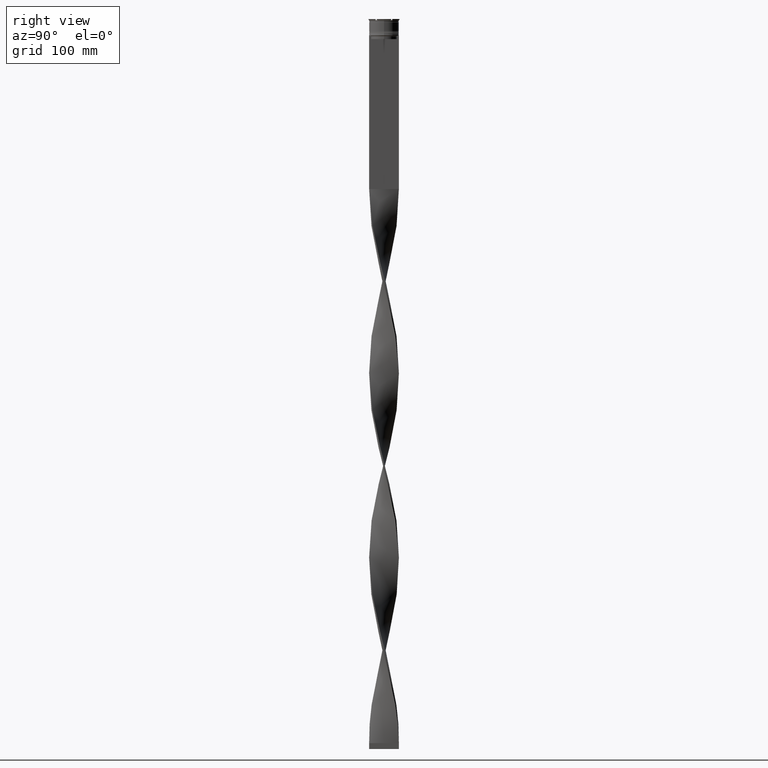
[diagram: clean part render]
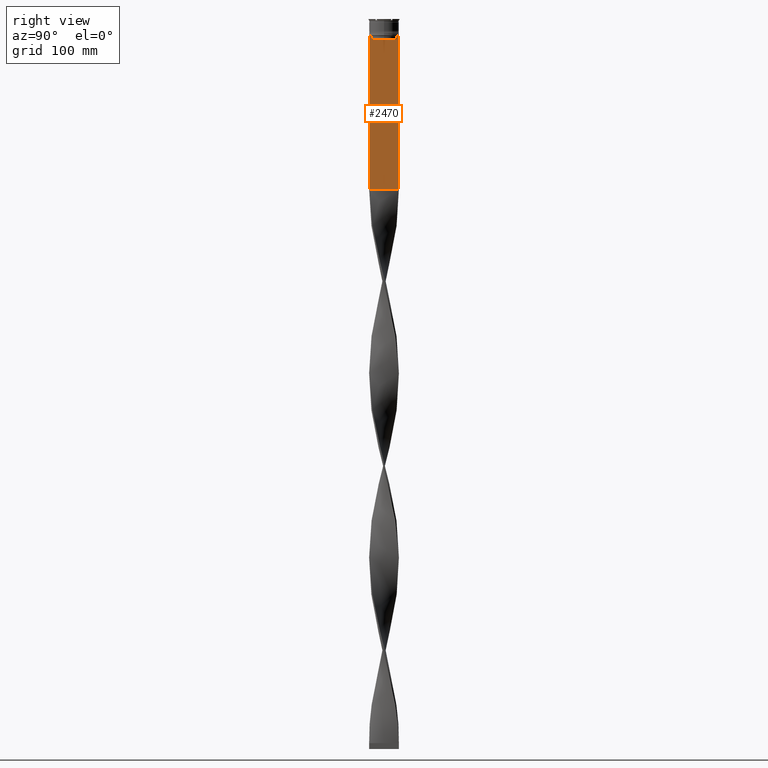
[diagram: same view with one face highlighted and labeled with its STEP entity id]
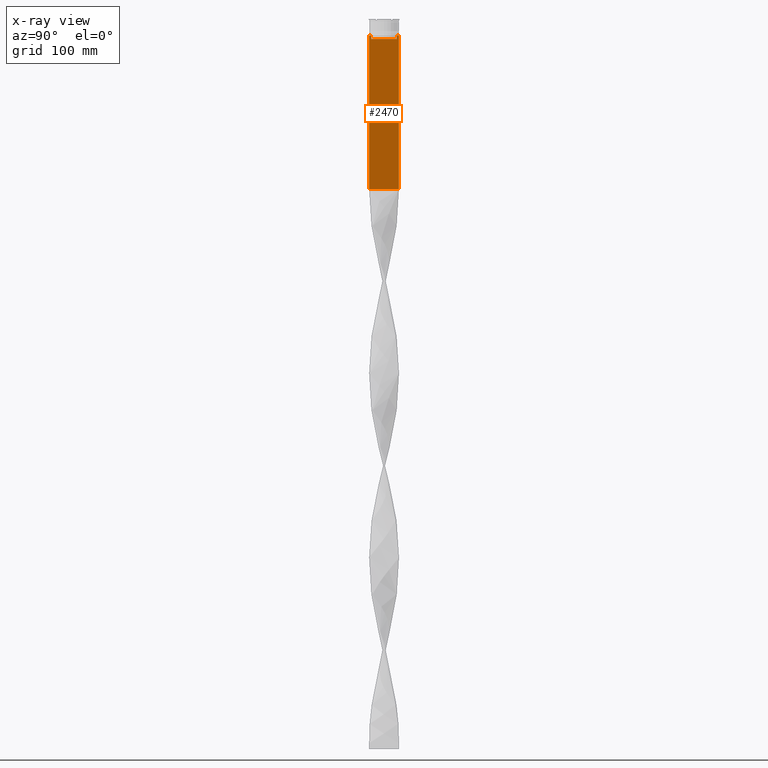
[diagram: x-ray of the same camera — body ghosted, the highlighted face saturated]
A machine part, right view. The second image highlights one B-rep face of the part: STEP entity #2470.
The next image is the same camera in x-ray: the body ghosted, the highlighted face saturated — about 0% of this face is hidden behind the body in this view.
In plain terms, the highlighted planar face has unit normal (-1, 0, 0).
Its self-contained STEP definition (entity closure, byte-faithful):
#3 = EDGE_CURVE ( 'NONE', #1358, #245, #724, .T. ) ;
#108 = CARTESIAN_POINT ( 'NONE',  ( 0.7500000000000002220, 11.04122051153452055, -14.33334204648729404 ) ) ;
#136 = AXIS2_PLACEMENT_3D ( 'NONE', #188, #942, #1672 ) ;
#144 = VECTOR ( 'NONE', #512, 1000.000000000000000 ) ;
#164 = LINE ( 'NONE', #1625, #2497 ) ;
#174 = CARTESIAN_POINT ( 'NONE',  ( 0.7500000000000002220, -12.50000000000000000, -14.00000000000000178 ) ) ;
#188 = CARTESIAN_POINT ( 'NONE',  ( 0.7500000000000002220, -12.50000000000000000, 11.04495957273638673 ) ) ;
#203 = B_SPLINE_CURVE_WITH_KNOTS ( 'NONE', 3,
 ( #3479, #2360, #108, #4604 ),
 .UNSPECIFIED., .F., .F.,
 ( 4, 4 ),
 ( 0.01936090553552769281, 0.02006881572333104116 ),
 .UNSPECIFIED. ) ;
#245 = VERTEX_POINT ( 'NONE', #1828 ) ;
#460 = VERTEX_POINT ( 'NONE', #4790 ) ;
#512 = DIRECTION ( 'NONE',  ( 0.000000000000000000, -1.000000000000000000, 0.000000000000000000 ) ) ;
#549 = CARTESIAN_POINT ( 'NONE',  ( 0.7500000000000002220, 11.37530219378809093, -14.00000000000000178 ) ) ;
#564 = LINE ( 'NONE', #174, #4214 ) ;
#709 = VERTEX_POINT ( 'NONE', #3876 ) ;
#724 = LINE ( 'NONE', #2665, #3263 ) ;
#727 = CARTESIAN_POINT ( 'NONE',  ( 0.7500000000000002220, -10.87416663473574197, -14.50000000000000000 ) ) ;
#751 = VERTEX_POINT ( 'NONE', #1326 ) ;
#825 = CARTESIAN_POINT ( 'NONE',  ( 0.7500000000000002220, -12.50000000000000000, -143.0000000000000284 ) ) ;
#915 = PLANE ( 'NONE',  #136 ) ;
#942 = DIRECTION ( 'NONE',  ( -1.000000000000000000, 0.000000000000000000, 0.000000000000000000 ) ) ;
#946 = VERTEX_POINT ( 'NONE', #2430 ) ;
#952 = DIRECTION ( 'NONE',  ( 0.000000000000000000, -1.000000000000000000, 0.000000000000000000 ) ) ;
#1044 = ORIENTED_EDGE ( 'NONE', *, *, #2976, .T. ) ;
#1178 = EDGE_CURVE ( 'NONE', #460, #2467, #4816, .T. ) ;
#1230 = EDGE_CURVE ( 'NONE', #245, #3029, #2772, .T. ) ;
#1323 = EDGE_CURVE ( 'NONE', #2964, #460, #2300, .T. ) ;
#1326 = CARTESIAN_POINT ( 'NONE',  ( 0.7500000000000002220, 12.50000000000000000, -14.00000000000000178 ) ) ;
#1357 = LINE ( 'NONE', #4750, #4612 ) ;
#1358 = VERTEX_POINT ( 'NONE', #3041 ) ;
#1390 = VECTOR ( 'NONE', #2947, 1000.000000000000000 ) ;
#1446 = CARTESIAN_POINT ( 'NONE',  ( 0.7500000000000002220, -10.87416663473574197, 0.000000000000000000 ) ) ;
#1459 = DIRECTION ( 'NONE',  ( 0.000000000000000000, -1.000000000000000000, 0.000000000000000000 ) ) ;
#1534 = ORIENTED_EDGE ( 'NONE', *, *, #4318, .T. ) ;
#1625 = CARTESIAN_POINT ( 'NONE',  ( 0.7500000000000002220, 12.50000000000000000, 11.04495957273638673 ) ) ;
#1672 = DIRECTION ( 'NONE',  ( 0.000000000000000000, 0.000000000000000000, 1.000000000000000000 ) ) ;
#1766 = DIRECTION ( 'NONE',  ( 0.000000000000000000, -1.000000000000000000, 0.000000000000000000 ) ) ;
#1828 = CARTESIAN_POINT ( 'NONE',  ( 0.7500000000000002220, -12.50000000000000000, -143.0000000000000284 ) ) ;
#1880 = ORIENTED_EDGE ( 'NONE', *, *, #1323, .T. ) ;
#1917 = LINE ( 'NONE', #3058, #4619 ) ;
#2071 = VERTEX_POINT ( 'NONE', #549 ) ;
#2094 = VECTOR ( 'NONE', #3545, 1000.000000000000000 ) ;
#2100 = ORIENTED_EDGE ( 'NONE', *, *, #1230, .T. ) ;
#2141 = CARTESIAN_POINT ( 'NONE',  ( 0.7500000000000002220, 10.87416663473574019, -17.00000000000000000 ) ) ;
#2148 = ORIENTED_EDGE ( 'NONE', *, *, #2701, .T. ) ;
#2163 = CARTESIAN_POINT ( 'NONE',  ( 0.7500000000000002220, 12.50000000000000000, -143.0000000000000284 ) ) ;
#2189 = LINE ( 'NONE', #3785, #4471 ) ;
#2218 = VERTEX_POINT ( 'NONE', #2508 ) ;
#2300 = LINE ( 'NONE', #2319, #144 ) ;
#2319 = CARTESIAN_POINT ( 'NONE',  ( 0.7500000000000002220, 10.90000000000000213, -17.00000000000000000 ) ) ;
#2360 = CARTESIAN_POINT ( 'NONE',  ( 0.7500000000000002220, 11.20826531587977648, -14.16667499681701514 ) ) ;
#2430 = CARTESIAN_POINT ( 'NONE',  ( 0.7500000000000002220, 12.37729776647553059, -14.00000000000000178 ) ) ;
#2467 = VERTEX_POINT ( 'NONE', #2513 ) ;
#2470 = ADVANCED_FACE ( 'NONE', ( #3157 ), #915, .F. ) ;
#2497 = VECTOR ( 'NONE', #3458, 1000.000000000000000 ) ;
#2508 = CARTESIAN_POINT ( 'NONE',  ( 0.7500000000000002220, -11.37530219378809093, -14.00000000000000178 ) ) ;
#2513 = CARTESIAN_POINT ( 'NONE',  ( 0.7500000000000002220, -10.87416663473574197, -14.50000000000000000 ) ) ;
#2621 = EDGE_LOOP ( 'NONE', ( #1044, #1534, #4628, #1880, #4419, #3412, #3026, #2148, #3365, #2100, #2742, #4810 ) ) ;
#2665 = CARTESIAN_POINT ( 'NONE',  ( 0.7500000000000002220, -12.50000000000000000, 11.04495957273638673 ) ) ;
#2701 = EDGE_CURVE ( 'NONE', #709, #1358, #564, .T. ) ;
#2742 = ORIENTED_EDGE ( 'NONE', *, *, #4375, .F. ) ;
#2772 = LINE ( 'NONE', #825, #3902 ) ;
#2780 = CARTESIAN_POINT ( 'NONE',  ( 0.7500000000000002220, -12.50000000000000000, -14.00000000000000178 ) ) ;
#2947 = DIRECTION ( 'NONE',  ( -0.000000000000000000, -0.000000000000000000, 1.000000000000000000 ) ) ;
#2964 = VERTEX_POINT ( 'NONE', #2141 ) ;
#2976 = EDGE_CURVE ( 'NONE', #946, #2071, #1357, .T. ) ;
#3008 = CARTESIAN_POINT ( 'NONE',  ( 0.7500000000000002220, -11.04122051801870441, -14.33334204001847567 ) ) ;
#3026 = ORIENTED_EDGE ( 'NONE', *, *, #4202, .T. ) ;
#3029 = VERTEX_POINT ( 'NONE', #2163 ) ;
#3041 = CARTESIAN_POINT ( 'NONE',  ( 0.7500000000000002220, -12.50000000000000000, -14.00000000000000178 ) ) ;
#3058 = CARTESIAN_POINT ( 'NONE',  ( 0.7500000000000002220, -12.50000000000000000, -14.00000000000000178 ) ) ;
#3157 = FACE_OUTER_BOUND ( 'NONE', #2621, .T. ) ;
#3263 = VECTOR ( 'NONE', #4829, 1000.000000000000000 ) ;
#3365 = ORIENTED_EDGE ( 'NONE', *, *, #3, .T. ) ;
#3412 = ORIENTED_EDGE ( 'NONE', *, *, #4146, .T. ) ;
#3440 = DIRECTION ( 'NONE',  ( 0.000000000000000000, 1.000000000000000000, 0.000000000000000000 ) ) ;
#3451 = EDGE_CURVE ( 'NONE', #751, #946, #3906, .T. ) ;
#3458 = DIRECTION ( 'NONE',  ( 0.000000000000000000, 0.000000000000000000, -1.000000000000000000 ) ) ;
#3479 = CARTESIAN_POINT ( 'NONE',  ( 0.7500000000000002220, 11.37530219378809093, -14.00000000000000178 ) ) ;
#3537 = VERTEX_POINT ( 'NONE', #3875 ) ;
#3545 = DIRECTION ( 'NONE',  ( 0.000000000000000000, -1.000000000000000000, 0.000000000000000000 ) ) ;
#3785 = CARTESIAN_POINT ( 'NONE',  ( 0.7500000000000002220, 10.87416663473574197, 0.000000000000000000 ) ) ;
#3875 = CARTESIAN_POINT ( 'NONE',  ( 0.7500000000000002220, 10.87416663473574197, -14.50000000000000000 ) ) ;
#3876 = CARTESIAN_POINT ( 'NONE',  ( 0.7500000000000002220, -12.37729776647553059, -14.00000000000000178 ) ) ;
#3902 = VECTOR ( 'NONE', #3440, 1000.000000000000000 ) ;
#3906 = LINE ( 'NONE', #2780, #2094 ) ;
#4059 = DIRECTION ( 'NONE',  ( 0.000000000000000000, 0.000000000000000000, -1.000000000000000000 ) ) ;
#4133 = CARTESIAN_POINT ( 'NONE',  ( 0.7500000000000002220, -11.37530219378809093, -14.00000000000000178 ) ) ;
#4146 = EDGE_CURVE ( 'NONE', #2467, #2218, #4422, .T. ) ;
#4202 = EDGE_CURVE ( 'NONE', #2218, #709, #1917, .T. ) ;
#4214 = VECTOR ( 'NONE', #952, 1000.000000000000000 ) ;
#4318 = EDGE_CURVE ( 'NONE', #2071, #3537, #203, .T. ) ;
#4375 = EDGE_CURVE ( 'NONE', #751, #3029, #164, .T. ) ;
#4419 = ORIENTED_EDGE ( 'NONE', *, *, #1178, .T. ) ;
#4422 = B_SPLINE_CURVE_WITH_KNOTS ( 'NONE', 3,
 ( #727, #3008, #4509, #4133 ),
 .UNSPECIFIED., .F., .F.,
 ( 4, 4 ),
 ( 0.05009718908159448147, 0.05081156920313959630 ),
 .UNSPECIFIED. ) ;
#4471 = VECTOR ( 'NONE', #4059, 1000.000000000000000 ) ;
#4509 = CARTESIAN_POINT ( 'NONE',  ( 0.7500000000000002220, -11.20826532207830439, -14.16667499063191826 ) ) ;
#4604 = CARTESIAN_POINT ( 'NONE',  ( 0.7500000000000002220, 10.87416663473574197, -14.50000000000000000 ) ) ;
#4612 = VECTOR ( 'NONE', #1766, 1000.000000000000000 ) ;
#4619 = VECTOR ( 'NONE', #1459, 1000.000000000000000 ) ;
#4628 = ORIENTED_EDGE ( 'NONE', *, *, #4786, .T. ) ;
#4750 = CARTESIAN_POINT ( 'NONE',  ( 0.7500000000000002220, -12.50000000000000000, -14.00000000000000178 ) ) ;
#4786 = EDGE_CURVE ( 'NONE', #3537, #2964, #2189, .T. ) ;
#4790 = CARTESIAN_POINT ( 'NONE',  ( 0.7500000000000002220, -10.87416663473574019, -17.00000000000000000 ) ) ;
#4810 = ORIENTED_EDGE ( 'NONE', *, *, #3451, .T. ) ;
#4816 = LINE ( 'NONE', #1446, #1390 ) ;
#4829 = DIRECTION ( 'NONE',  ( 0.000000000000000000, 0.000000000000000000, -1.000000000000000000 ) ) ;